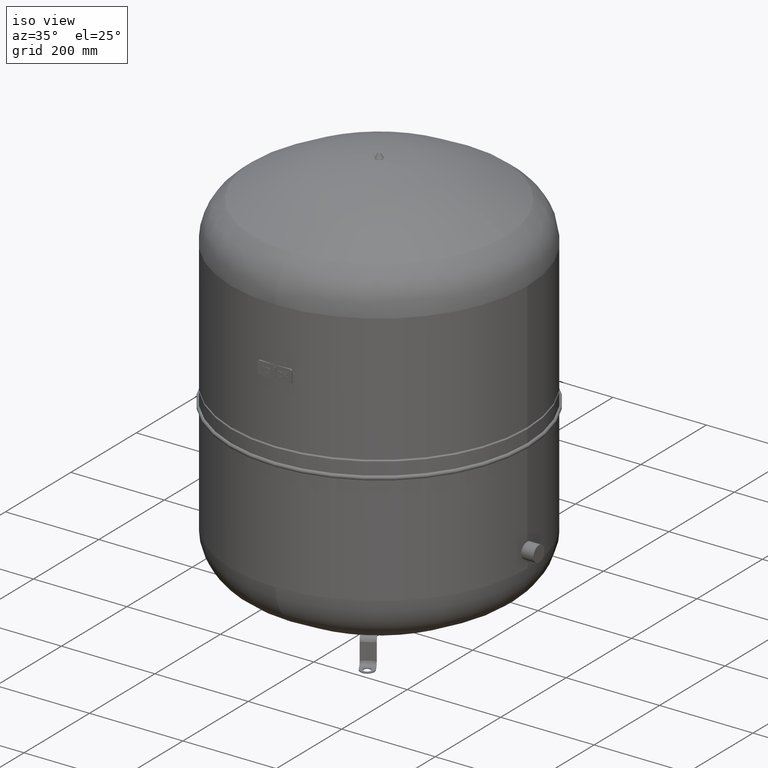
[diagram: clean part render]
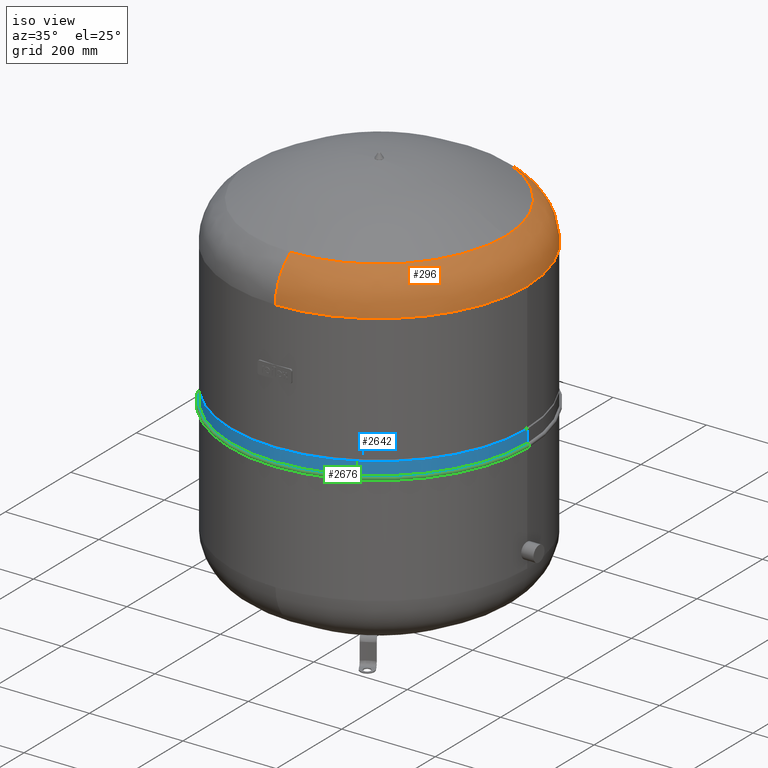
[diagram: same view with three faces highlighted in distinct colors, each labeled with its STEP entity id]
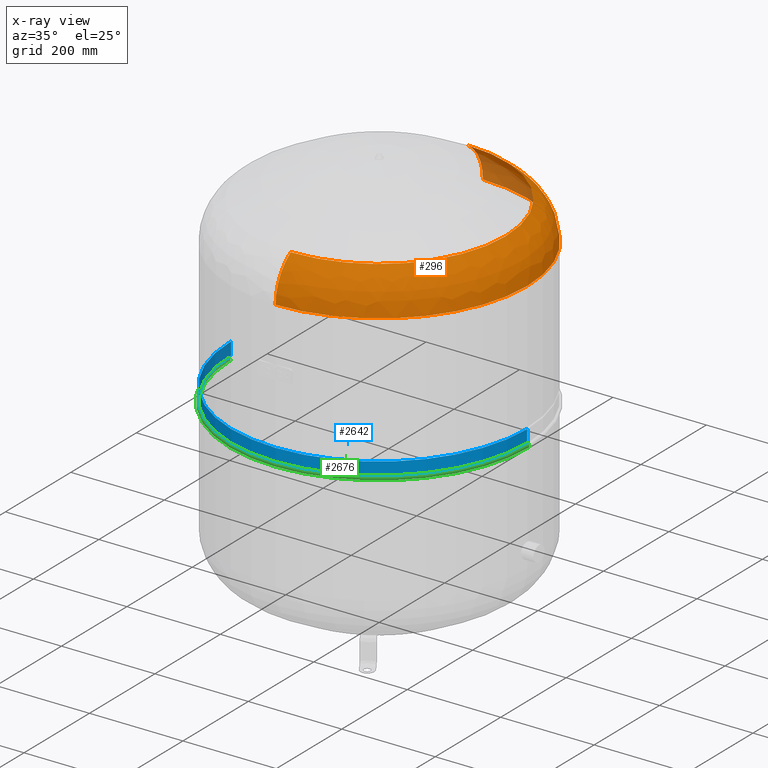
[diagram: x-ray of the same camera — body ghosted, the three highlighted faces saturated]
A machine part, iso view with three faces highlighted in distinct colors.
The next image is the same camera in x-ray (body ghosted, the three faces saturated) — at least one of them is partly hidden behind the body in this view.
Their STEP definitions:

[orange] entity #296 — the highlighted face is a freeform B-spline surface patch.
#170=CARTESIAN_POINT('',(317.0,9.105293E-015,716.24055062737136));
#171=VERTEX_POINT('',#170);
#178=CARTESIAN_POINT('',(9.762260E-031,-317.00000000000011,716.24055062737159));
#179=VERTEX_POINT('',#178);
#180=CARTESIAN_POINT('',(-1.556097E-014,-2.971473E-014,716.24055062737136));
#181=DIRECTION('',(0.0,0.0,1.0));
#182=DIRECTION('',(-1.0,0.0,0.0));
#183=AXIS2_PLACEMENT_3D('',#180,#181,#182);
#184=CIRCLE('',#183,317.00000000000006);
#185=EDGE_CURVE('',#179,#171,#184,.T.);
#197=CARTESIAN_POINT('',(-1.457282E-014,119.0,716.24055062737102));
#198=CARTESIAN_POINT('',(-5.049191E-015,118.99999999999974,815.24055062737125));
#199=CARTESIAN_POINT('',(-1.717279E-014,217.99999999999997,815.24055062737125));
#200=CARTESIAN_POINT('',(-2.929640E-014,317.00000000000023,815.24055062737125));
#201=CARTESIAN_POINT('',(-3.882002E-014,316.99999999999994,716.24055062737091));
#202=CARTESIAN_POINT('',(-119.00000000000001,118.99999999999994,716.24055062737102));
#203=CARTESIAN_POINT('',(-118.99999999999973,118.9999999999997,815.24055062737125));
#204=CARTESIAN_POINT('',(-217.99999999999994,217.99999999999989,815.24055062737125));
#205=CARTESIAN_POINT('',(-317.00000000000023,317.00000000000011,815.24055062737125));
#206=CARTESIAN_POINT('',(-317.0,316.99999999999989,716.24055062737091));
#207=CARTESIAN_POINT('',(-119.00000000000003,-4.428754E-014,716.24055062737102));
#208=CARTESIAN_POINT('',(-118.99999999999974,-2.610154E-014,815.24055062737125));
#209=CARTESIAN_POINT('',(-217.99999999999997,-3.822514E-014,815.24055062737125));
#210=CARTESIAN_POINT('',(-317.00000000000023,-5.034875E-014,815.24055062737125));
#211=CARTESIAN_POINT('',(-317.0,-6.853475E-014,716.24055062737102));
#212=CARTESIAN_POINT('',(-118.99999999999999,-119.00000000000004,716.24055062737102));
#213=CARTESIAN_POINT('',(-118.9999999999997,-118.99999999999976,815.24055062737125));
#214=CARTESIAN_POINT('',(-217.99999999999989,-217.99999999999994,815.24055062737125));
#215=CARTESIAN_POINT('',(-317.00000000000011,-317.00000000000023,815.24055062737125));
#216=CARTESIAN_POINT('',(-316.99999999999989,-317.0,716.24055062737114));
#217=CARTESIAN_POINT('',(1.457282E-014,-119.00000000000006,716.24055062737102));
#218=CARTESIAN_POINT('',(2.409644E-014,-118.99999999999977,815.24055062737125));
#219=CARTESIAN_POINT('',(3.622004E-014,-217.99999999999997,815.24055062737125));
#220=CARTESIAN_POINT('',(4.834365E-014,-317.00000000000023,815.24055062737125));
#221=CARTESIAN_POINT('',(3.882002E-014,-317.00000000000006,716.24055062737114));
#222=CARTESIAN_POINT('',(119.00000000000001,-119.00000000000001,716.24055062737102));
#223=CARTESIAN_POINT('',(118.99999999999976,-118.99999999999973,815.24055062737125));
#224=CARTESIAN_POINT('',(217.99999999999994,-217.99999999999989,815.24055062737125));
#225=CARTESIAN_POINT('',(317.00000000000023,-317.00000000000017,815.24055062737125));
#226=CARTESIAN_POINT('',(317.0,-316.99999999999994,716.24055062737114));
#227=CARTESIAN_POINT('',(119.00000000000003,-1.514191E-014,716.24055062737102));
#228=CARTESIAN_POINT('',(118.99999999999977,3.044092E-015,815.24055062737125));
#229=CARTESIAN_POINT('',(217.99999999999997,1.516769E-014,815.24055062737125));
#230=CARTESIAN_POINT('',(317.00000000000023,2.729130E-014,815.24055062737125));
#231=CARTESIAN_POINT('',(317.0,9.105293E-015,716.24055062737102));
#232=CARTESIAN_POINT('',(118.99999999999999,118.99999999999999,716.24055062737102));
#233=CARTESIAN_POINT('',(118.99999999999973,118.99999999999973,815.24055062737125));
#234=CARTESIAN_POINT('',(217.99999999999989,217.99999999999994,815.24055062737125));
#235=CARTESIAN_POINT('',(317.00000000000011,317.00000000000017,815.24055062737125));
#236=CARTESIAN_POINT('',(316.99999999999989,316.99999999999994,716.24055062737091));
#237=CARTESIAN_POINT('',(-1.457282E-014,119.0,716.24055062737102));
#238=CARTESIAN_POINT('',(-5.049191E-015,118.99999999999974,815.24055062737125));
#239=CARTESIAN_POINT('',(-1.717279E-014,217.99999999999997,815.24055062737125));
#240=CARTESIAN_POINT('',(-2.929640E-014,317.00000000000023,815.24055062737125));
#241=CARTESIAN_POINT('',(-3.882002E-014,316.99999999999994,716.24055062737091));
#249=(BOUNDED_SURFACE()B_SPLINE_SURFACE(2,2,((#197,#202,#207,#212,#217,#222,#227,#232,#237),(#198,#203,#208,#213,#218,#223,#228,#233,#238),(#199,#204,#209,#214,#219,#224,#229,#234,#239),(#200,#205,#210,#215,#220,#225,#230,#235,#240),(#201,#206,#211,#216,#221,#226,#231,#236,#241)),.UNSPECIFIED.,.F.,.T.,.U.)B_SPLINE_SURFACE_WITH_KNOTS((3,2,3),(3,2,2,2,3),(-3.141592653589796,-1.570796326794897,2.884905E-015),(0.0,1.570796326794897,3.141592653589793,4.71238898038469,6.283185307179586),.UNSPECIFIED.)GEOMETRIC_REPRESENTATION_ITEM()RATIONAL_B_SPLINE_SURFACE(((1.0,0.707106781186548,1.0,0.707106781186548,1.0,0.707106781186548,1.0,0.707106781186548,1.0),(0.707106781186546,0.499999999999999,0.707106781186546,0.499999999999999,0.707106781186546,0.499999999999999,0.707106781186546,0.499999999999999,0.707106781186546),(1.0,0.707106781186548,1.0,0.707106781186548,1.0,0.707106781186548,1.0,0.707106781186548,1.0),(0.707106781186547,0.499999999999999,0.707106781186547,0.499999999999999,0.707106781186547,0.499999999999999,0.707106781186547,0.499999999999999,0.707106781186547),(1.0,0.707106781186548,1.0,0.707106781186548,1.0,0.707106781186548,1.0,0.707106781186548,1.0)))REPRESENTATION_ITEM('')SURFACE());
#250=CARTESIAN_POINT('',(8.065826E-015,-270.63902439024383,800.08643968129752));
#251=VERTEX_POINT('',#250);
#252=CARTESIAN_POINT('',(0.0,-218.00000000000003,716.24055062737148));
#253=DIRECTION('',(-1.0,0.0,0.0));
#254=DIRECTION('',(0.0,-1.0,0.0));
#255=AXIS2_PLACEMENT_3D('',#252,#253,#254);
#256=CIRCLE('',#255,99.0);
#257=EDGE_CURVE('',#179,#251,#256,.T.);
#258=ORIENTED_EDGE('',*,*,#257,.F.);
#259=ORIENTED_EDGE('',*,*,#185,.T.);
#260=CARTESIAN_POINT('',(-3.882002E-014,317.0,716.24055062737114));
#261=VERTEX_POINT('',#260);
#262=CARTESIAN_POINT('',(-1.556097E-014,-2.971473E-014,716.24055062737136));
#263=DIRECTION('',(0.0,0.0,1.0));
#264=DIRECTION('',(-1.0,0.0,0.0));
#265=AXIS2_PLACEMENT_3D('',#262,#263,#264);
#266=CIRCLE('',#265,317.00000000000006);
#267=EDGE_CURVE('',#171,#261,#266,.T.);
#268=ORIENTED_EDGE('',*,*,#267,.T.);
#269=CARTESIAN_POINT('',(-2.507680E-014,270.63902439024383,800.08643968129752));
#270=VERTEX_POINT('',#269);
#271=CARTESIAN_POINT('',(-2.669642E-014,217.99999999999997,716.24055062737125));
#272=DIRECTION('',(1.0,0.0,0.0));
#273=DIRECTION('',(0.0,1.0,0.0));
#274=AXIS2_PLACEMENT_3D('',#271,#272,#273);
#275=CIRCLE('',#274,99.0);
#276=EDGE_CURVE('',#261,#270,#275,.T.);
#277=ORIENTED_EDGE('',*,*,#276,.T.);
#278=CARTESIAN_POINT('',(270.63902439024383,-9.350178E-014,800.08643968129752));
#279=VERTEX_POINT('',#278);
#280=CARTESIAN_POINT('',(-7.495146E-015,-1.431249E-014,800.08643968129752));
#281=DIRECTION('',(0.0,0.0,1.0));
#282=DIRECTION('',(-1.0,0.0,0.0));
#283=AXIS2_PLACEMENT_3D('',#280,#281,#282);
#284=CIRCLE('',#283,270.63902439024383);
#285=EDGE_CURVE('',#279,#270,#284,.T.);
#286=ORIENTED_EDGE('',*,*,#285,.F.);
#287=CARTESIAN_POINT('',(-7.495146E-015,-1.431249E-014,800.08643968129752));
#288=DIRECTION('',(0.0,0.0,1.0));
#289=DIRECTION('',(-1.0,0.0,0.0));
#290=AXIS2_PLACEMENT_3D('',#287,#288,#289);
#291=CIRCLE('',#290,270.63902439024383);
#292=EDGE_CURVE('',#251,#279,#291,.T.);
#293=ORIENTED_EDGE('',*,*,#292,.F.);
#294=EDGE_LOOP('',(#258,#259,#268,#277,#286,#293));
#295=FACE_OUTER_BOUND('',#294,.T.);
#296=ADVANCED_FACE('',(#295),#249,.T.);

[blue] entity #2642 — the highlighted cylindrical surface (partial cylindrical patch) has radius 317 mm, axis along (0, 0, 1).
#2576=CARTESIAN_POINT('',(316.99999999999983,0.0,439.5));
#2577=VERTEX_POINT('',#2576);
#2593=CARTESIAN_POINT('',(-316.99999999999989,-3.882002E-014,439.5));
#2594=VERTEX_POINT('',#2593);
#2601=CARTESIAN_POINT('',(-2.139483E-016,0.0,439.5));
#2602=DIRECTION('',(0.0,0.0,1.0));
#2603=DIRECTION('',(1.0,0.0,0.0));
#2604=AXIS2_PLACEMENT_3D('',#2601,#2602,#2603);
#2605=CIRCLE('',#2604,316.99999999999983);
#2606=EDGE_CURVE('',#2594,#2577,#2605,.T.);
#2611=CARTESIAN_POINT('',(-1.042234E-015,0.0,425.95000000000005));
#2612=DIRECTION('',(6.112808E-017,0.0,1.0));
#2613=DIRECTION('',(1.0,0.0,0.0));
#2614=AXIS2_PLACEMENT_3D('',#2611,#2612,#2613);
#2615=CYLINDRICAL_SURFACE('',#2614,316.99999999999989);
#2616=CARTESIAN_POINT('',(316.99999999999989,0.0,412.39999999999998));
#2617=VERTEX_POINT('',#2616);
#2618=CARTESIAN_POINT('',(316.99999999999989,0.0,439.5));
#2619=DIRECTION('',(0.0,0.0,-1.0));
#2620=VECTOR('',#2619,27.099999999999966);
#2621=LINE('',#2618,#2620);
#2622=EDGE_CURVE('',#2577,#2617,#2621,.T.);
#2623=ORIENTED_EDGE('',*,*,#2622,.F.);
#2624=ORIENTED_EDGE('',*,*,#2606,.F.);
#2625=CARTESIAN_POINT('',(-316.99999999999989,-3.882002E-014,412.40000000000003));
#2626=VERTEX_POINT('',#2625);
#2627=CARTESIAN_POINT('',(-316.99999999999989,-3.882002E-014,439.5));
#2628=DIRECTION('',(0.0,0.0,-1.0));
#2629=VECTOR('',#2628,27.099999999999966);
#2630=LINE('',#2627,#2629);
#2631=EDGE_CURVE('',#2594,#2626,#2630,.T.);
#2632=ORIENTED_EDGE('',*,*,#2631,.T.);
#2633=CARTESIAN_POINT('',(-1.870519E-015,0.0,412.40000000000003));
#2634=DIRECTION('',(0.0,0.0,1.0));
#2635=DIRECTION('',(1.0,0.0,0.0));
#2636=AXIS2_PLACEMENT_3D('',#2633,#2634,#2635);
#2637=CIRCLE('',#2636,316.99999999999989);
#2638=EDGE_CURVE('',#2626,#2617,#2637,.T.);
#2639=ORIENTED_EDGE('',*,*,#2638,.T.);
#2640=EDGE_LOOP('',(#2623,#2624,#2632,#2639));
#2641=FACE_OUTER_BOUND('',#2640,.T.);
#2642=ADVANCED_FACE('',(#2641),#2615,.T.);

[green] entity #2676 — the highlighted toroidal blend (fillet) surface has major radius 317 mm and minor (blend) radius 4.4 mm.
#2616=CARTESIAN_POINT('',(316.99999999999989,0.0,412.39999999999998));
#2617=VERTEX_POINT('',#2616);
#2625=CARTESIAN_POINT('',(-316.99999999999989,-3.882002E-014,412.40000000000003));
#2626=VERTEX_POINT('',#2625);
#2633=CARTESIAN_POINT('',(-1.870519E-015,0.0,412.40000000000003));
#2634=DIRECTION('',(0.0,0.0,1.0));
#2635=DIRECTION('',(1.0,0.0,0.0));
#2636=AXIS2_PLACEMENT_3D('',#2633,#2634,#2635);
#2637=CIRCLE('',#2636,316.99999999999989);
#2638=EDGE_CURVE('',#2626,#2617,#2637,.T.);
#2643=CARTESIAN_POINT('',(-3.552714E-014,0.0,408.00000000000006));
#2644=DIRECTION('',(6.112808E-017,0.0,1.0));
#2645=DIRECTION('',(1.0,0.0,0.0));
#2646=AXIS2_PLACEMENT_3D('',#2643,#2644,#2645);
#2647=TOROIDAL_SURFACE('',#2646,316.99999999999994,4.4);
#2648=CARTESIAN_POINT('',(316.99999999999994,0.0,403.60000000000002));
#2649=VERTEX_POINT('',#2648);
#2650=CARTESIAN_POINT('',(316.99999999999989,0.0,408.00000000000006));
#2651=DIRECTION('',(0.0,1.0,0.0));
#2652=DIRECTION('',(1.0,0.0,0.0));
#2653=AXIS2_PLACEMENT_3D('',#2650,#2651,#2652);
#2654=CIRCLE('',#2653,4.4);
#2655=EDGE_CURVE('',#2617,#2649,#2654,.T.);
#2656=ORIENTED_EDGE('',*,*,#2655,.F.);
#2657=ORIENTED_EDGE('',*,*,#2638,.F.);
#2658=CARTESIAN_POINT('',(-316.99999999999994,-3.882002E-014,403.60000000000002));
#2659=VERTEX_POINT('',#2658);
#2660=CARTESIAN_POINT('',(-317.0,-3.882002E-014,408.00000000000006));
#2661=DIRECTION('',(0.0,-1.0,0.0));
#2662=DIRECTION('',(-1.0,0.0,0.0));
#2663=AXIS2_PLACEMENT_3D('',#2660,#2661,#2662);
#2664=CIRCLE('',#2663,4.4);
#2665=EDGE_CURVE('',#2626,#2659,#2664,.T.);
#2666=ORIENTED_EDGE('',*,*,#2665,.T.);
#2667=CARTESIAN_POINT('',(-2.408446E-015,0.0,403.60000000000002));
#2668=DIRECTION('',(0.0,0.0,1.0));
#2669=DIRECTION('',(1.0,0.0,0.0));
#2670=AXIS2_PLACEMENT_3D('',#2667,#2668,#2669);
#2671=CIRCLE('',#2670,316.99999999999994);
#2672=EDGE_CURVE('',#2659,#2649,#2671,.T.);
#2673=ORIENTED_EDGE('',*,*,#2672,.T.);
#2674=EDGE_LOOP('',(#2656,#2657,#2666,#2673));
#2675=FACE_OUTER_BOUND('',#2674,.T.);
#2676=ADVANCED_FACE('',(#2675),#2647,.T.);